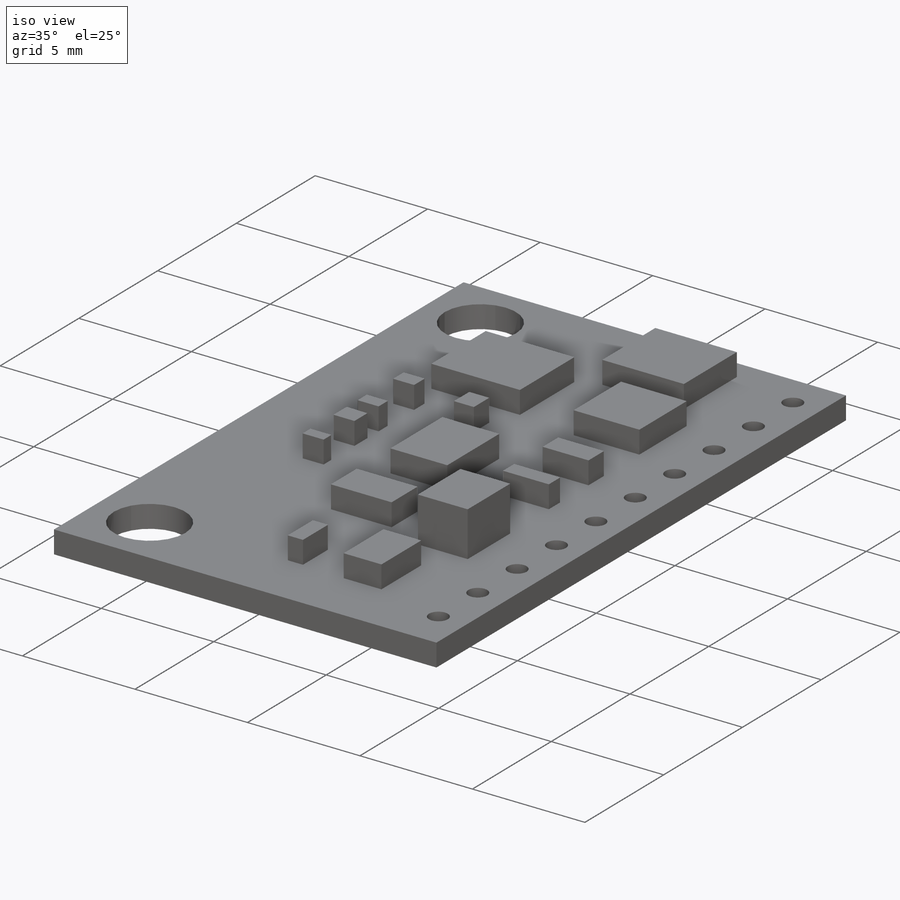
[diagram: iso view]
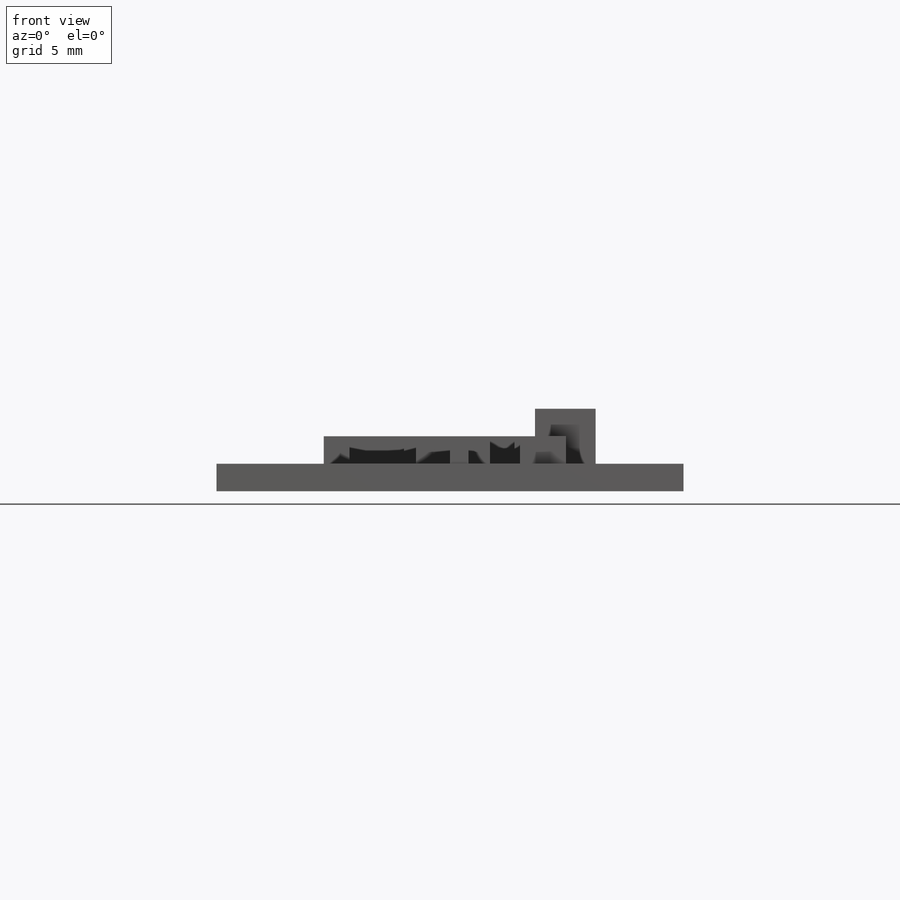
[diagram: front view]
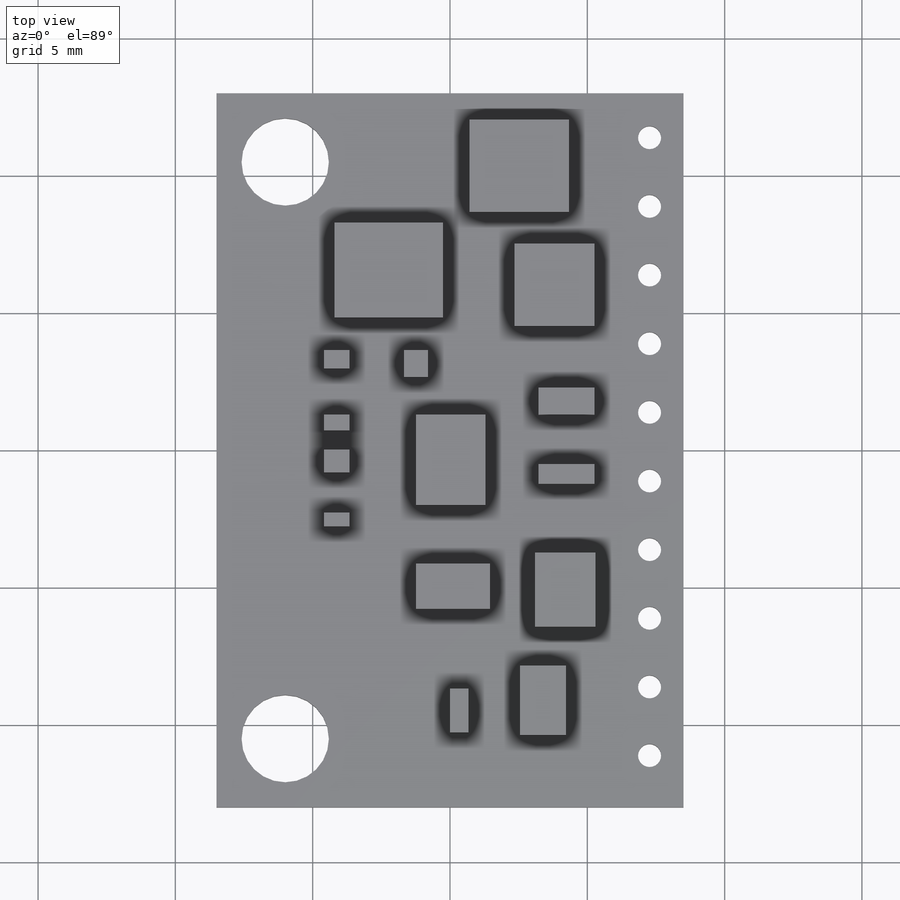
[diagram: top view]
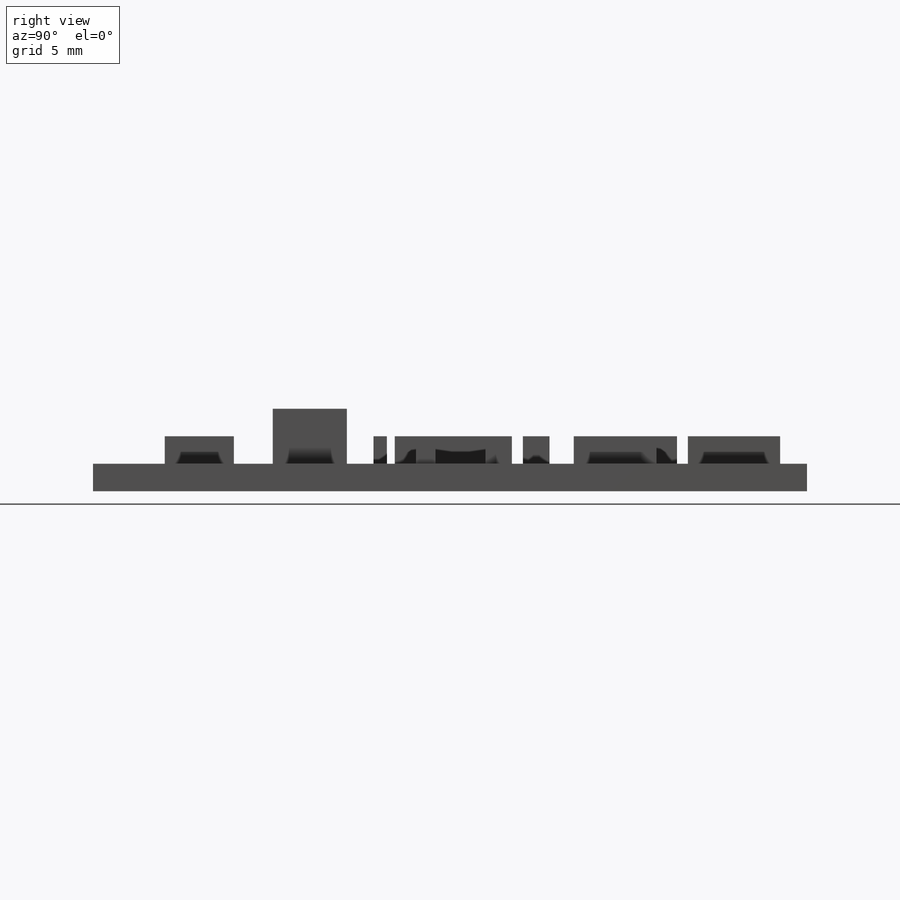
[diagram: right view]
SOLIDWORKS PART (.sldprt)
format: sldprt  version: not decoded by parser v0  size: 266,240 bytes
history: native  units: mm
features: sketch x4, extrude x3, material x1, cut_extrude x1 (+12 scaffold rows collapsed)
feature tree (21):
  scaffold x12  (default folders/planes/origin — collapsed)
  material  "Material <not specified>"
  sketch  "Sketch2"  dims[D1=26.0mm D2=17.0mm]
  extrude  "Boss-Extrude1"  Depth=1mm
  sketch  "Sketch3"  dims[c1.D1=0.8mm c1.D2=0.84mm c2.D1=0.5mm c2.D2=2.5mm c2.D3=2.5mm c2.D4=2.5mm c2.D5=2.5mm]
  extrude  "Boss-Extrude2"  Depth=1mm
  sketch  "Sketch4"  dims[D2=0.84mm D3=3.18mm D4=3.18mm D5=~2.122961mm D1=10.0]
  cut_extrude  "Cut-Extrude1"  [1 undecoded]
  sketch  "Sketch5"
  extrude  "Boss-Extrude3"  Depth=2mm
decode coverage: 6 of 8 modeling features carry decoded parameters
note: ~ marks probable driven/reference dimensions
note: 1 parameter value undecoded
note: suppression state not decoded; provenance and decode notes live in map.json
